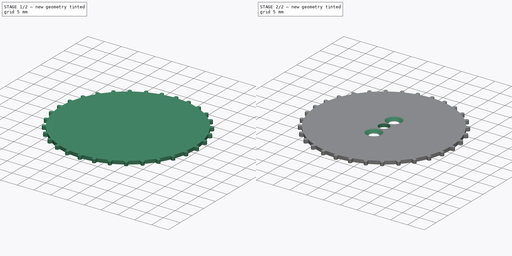
[diagram: build sequence overview — one tinted view per stage of 2, left to right]
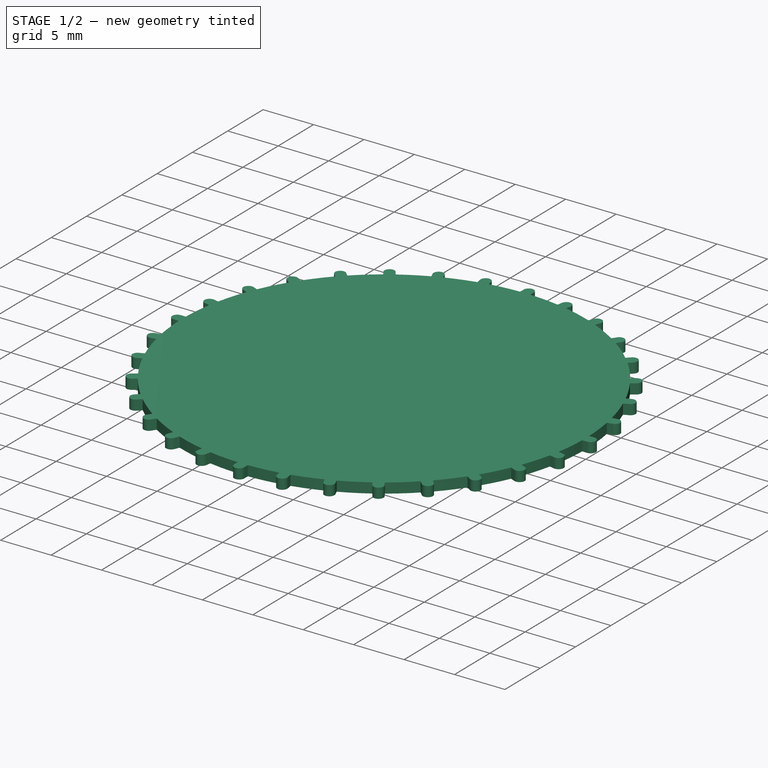
[diagram: stage 1 of 2 — iso view after this stage's code; geometry added in this stage tinted green]
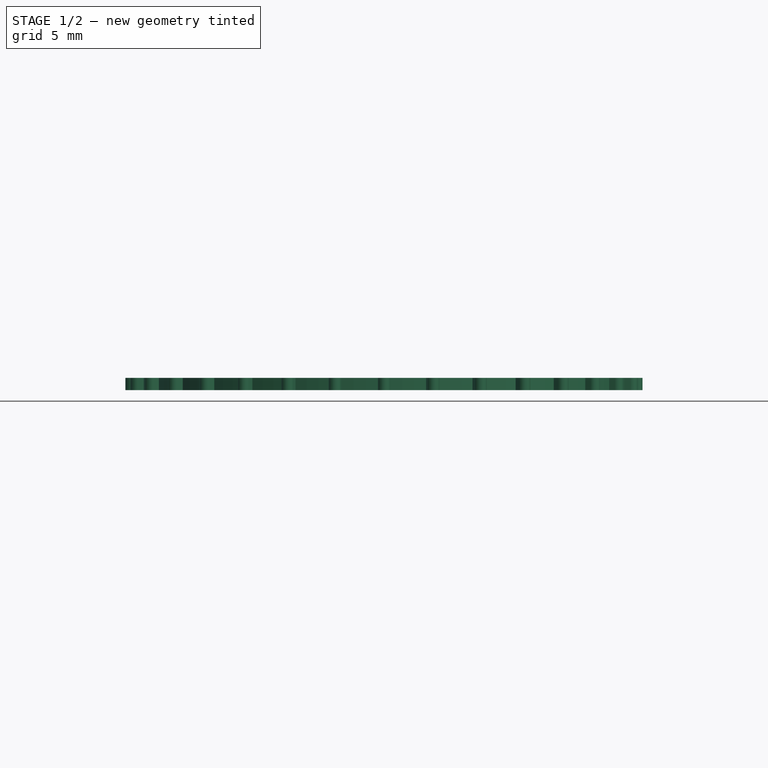
[diagram: stage 1 of 2 — front view after this stage's code; geometry added in this stage tinted green]
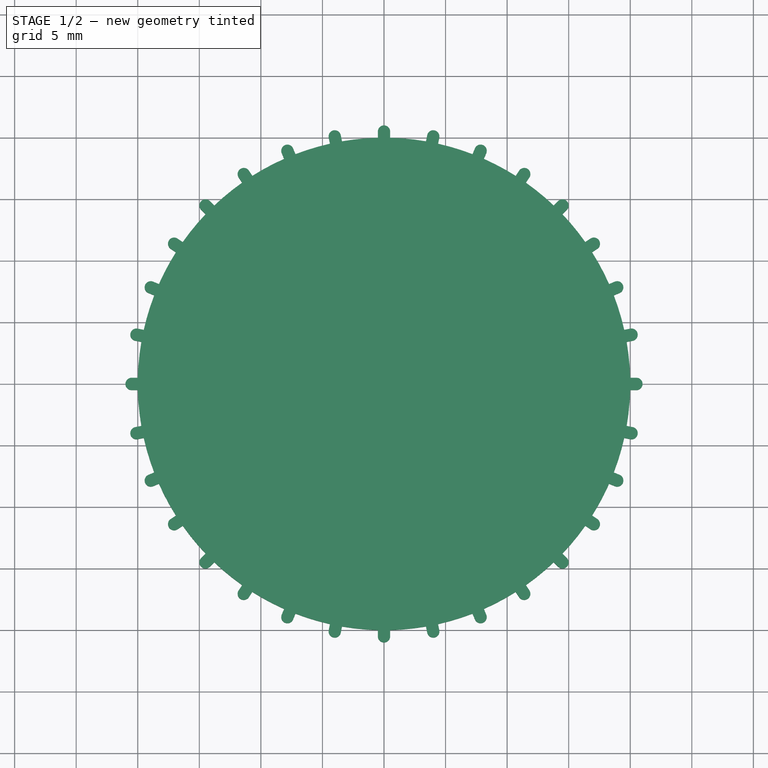
[diagram: stage 1 of 2 — top view after this stage's code; geometry added in this stage tinted green]
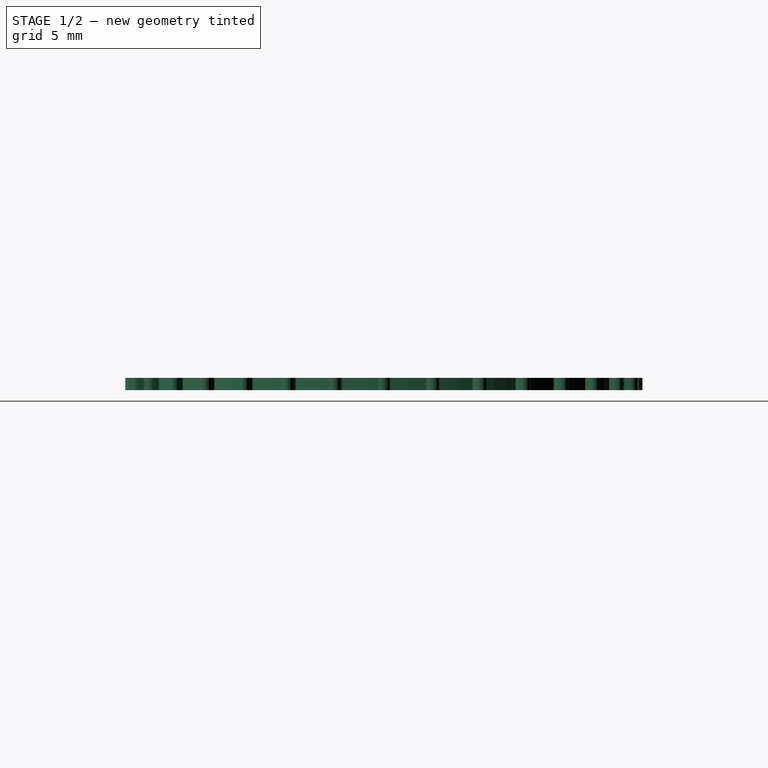
[diagram: stage 1 of 2 — right view after this stage's code; geometry added in this stage tinted green]
FCSTD DOCUMENT  (FreeCAD 0.20R29603 (Git))
Label: indexing-wheel
License: All rights reserved
LicenseURL: http://en.wikipedia.org/wiki/All_rights_reserved
objects: Sketcher::SketchObject×3, Part::Feature×2, PartDesign::Pad×1, PartDesign::PolarPattern×1, PartDesign::Pocket×1, PartDesign::Hole×1, PartDesign::Body×1
note: 13 computed .brp shape members not serialized (recipe doc carries the construction recipe); baked Part::Feature solids carry a one-line shape summary decoded from their .brp

FEATURE [Sketcher::SketchObject] Sketch
  FullyConstrained = true
  MapMode = 5
  Support = -> [XY_Plane]
  sketch-geometry (7):
    g0: LineSegment StartX=-0.5 StartY=19.9937 StartZ=0 EndX=-0.5 EndY=20.5 EndZ=0
    g1: ArcOfCircle CenterX=0 CenterY=20.5 CenterZ=0 NormalX=0 NormalY=0 NormalZ=1 AngleXU=0 Radius=0.5 StartAngle=6.28319 EndAngle=9.42478
    g2: LineSegment StartX=0.5 StartY=20.5 StartZ=0 EndX=0.5 EndY=19.9937 EndZ=0
    g3: ArcOfCircle CenterX=0 CenterY=0 CenterZ=0 NormalX=0 NormalY=0 NormalZ=1 AngleXU=0 Radius=20 StartAngle=1.39945 EndAngle=1.54579
    g4: ArcOfCircle CenterX=0 CenterY=0 CenterZ=0 NormalX=0 NormalY=0 NormalZ=1 AngleXU=0 Radius=20 StartAngle=1.54579 EndAngle=1.5958
    g5: LineSegment StartX=-0.5 StartY=19.9937 StartZ=0 EndX=0 EndY=0 EndZ=0
    g6: LineSegment StartX=3.41019 StartY=19.7071 StartZ=0 EndX=0 EndY=0 EndZ=0
  constraints (20):
    c: Coincident(g2,g1)
    c: Vertical(g2)
    c: Coincident(g3,g2)
    c: Diameter(g3) = 40
    c: DistanceY(g3,g1) = 20.5
    c: Coincident(g4,g3)
    c: Coincident(g4,g0)
    c: Coincident(g4,g2)
    c: Tangent(g2,g1)
    c: Coincident(g6,g3)
    c: Coincident(g6,g3)
    c: Angle(g6,g5) = 0.19635
    c: Coincident(g5,g0)
    c: Coincident(g0,g1)
    c: Tangent(g0,g1)
    c: Vertical(g0)
    c: Coincident(g5,g3)
    c: Coincident(g3,g-1)
    c: PointOnObject(g1,g-2)
    c: Diameter(g1) = 1
FEATURE [PartDesign::Pad] Pad
  Direction = (0,0,1)
  Length = 1
  Length2 = 100
  Profile = -> Sketch
  Type = 0
FEATURE [PartDesign::PolarPattern] PolarPattern
  Angle = 360
  Axis = -> Sketch [N_Axis]
  BaseFeature = -> Pad
  Occurrences = 32
  Originals = -> [Pad]
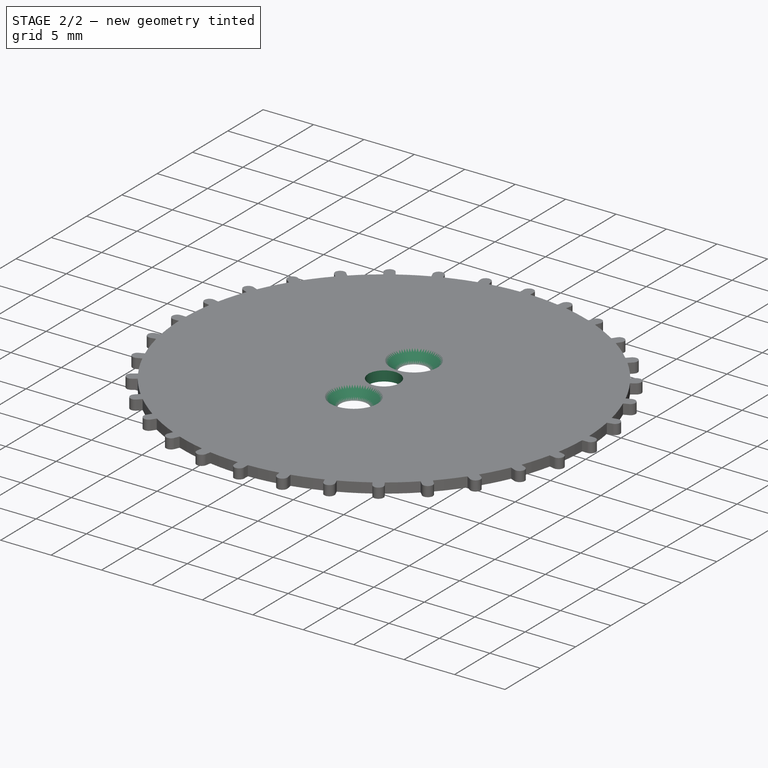
[diagram: stage 2 of 2 — iso view after this stage's code; geometry added in this stage tinted green]
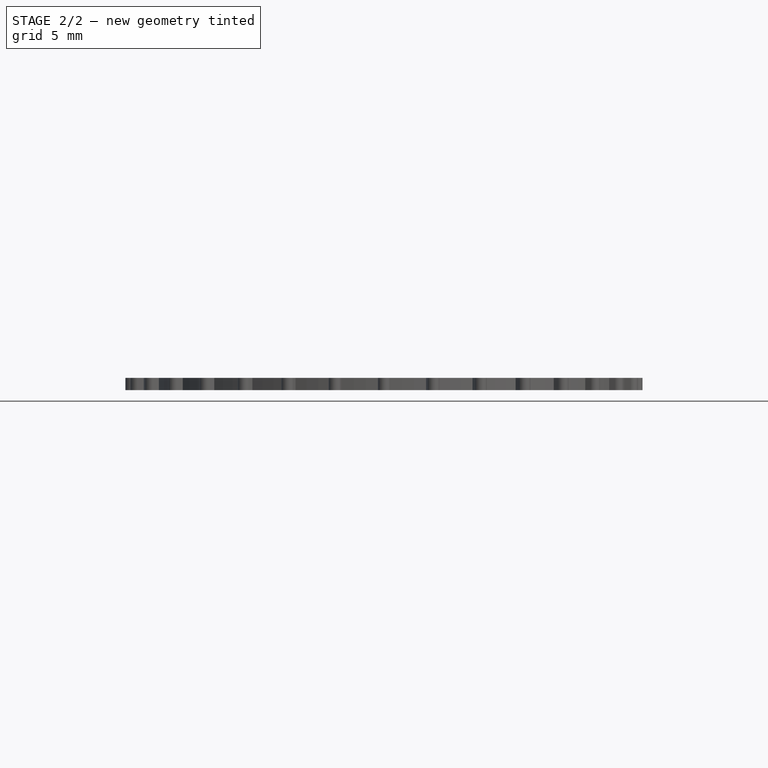
[diagram: stage 2 of 2 — front view after this stage's code; geometry added in this stage tinted green]
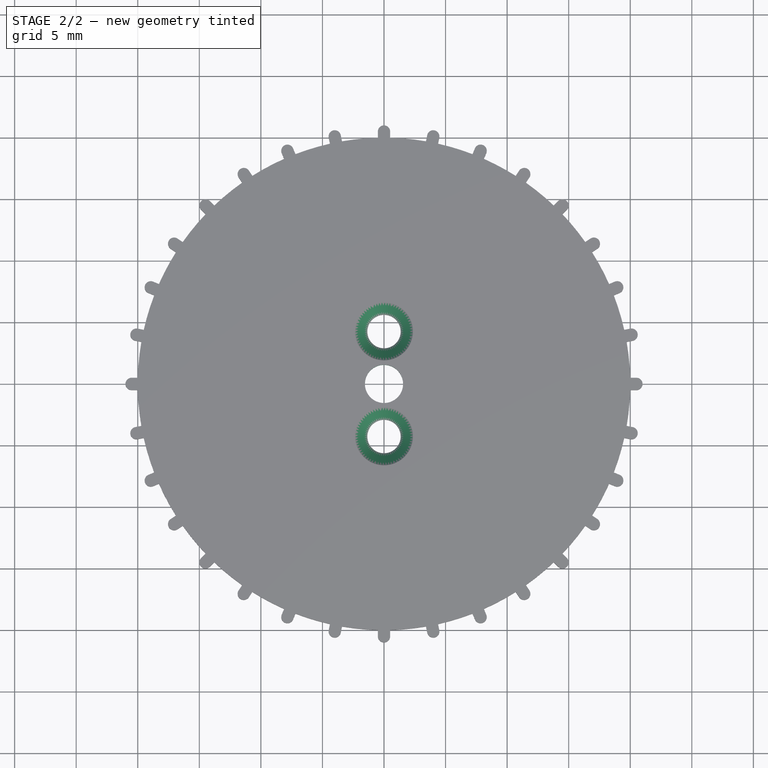
[diagram: stage 2 of 2 — top view after this stage's code; geometry added in this stage tinted green]
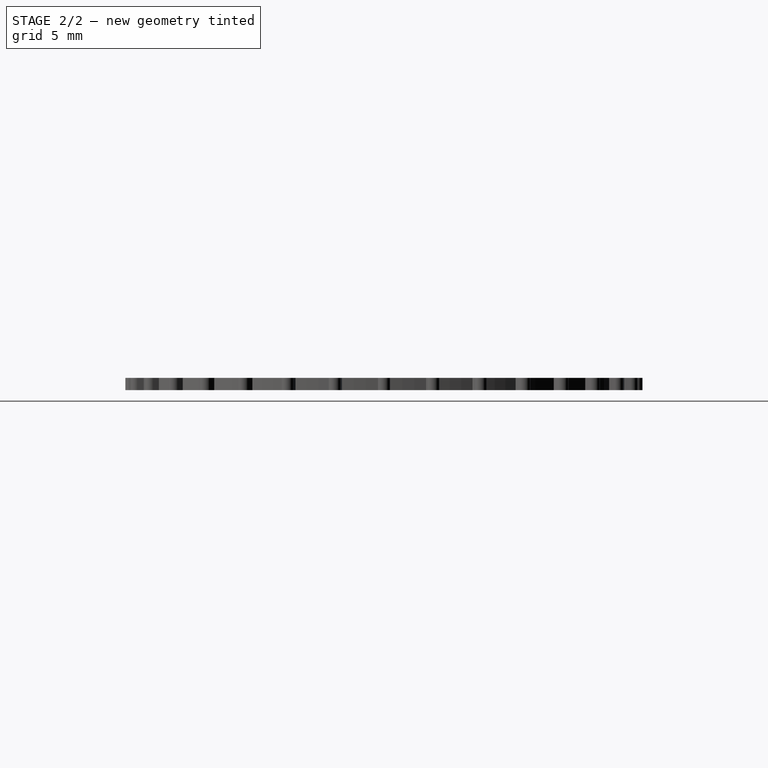
[diagram: stage 2 of 2 — right view after this stage's code; geometry added in this stage tinted green]
FEATURE [Sketcher::SketchObject] Sketch001
  FullyConstrained = true
  MapMode = 5
  Support = -> [XY_Plane]
  sketch-geometry (22):
    g0: Circle CenterX=0 CenterY=-11 CenterZ=0 NormalX=0 NormalY=0 NormalZ=1 AngleXU=0 Radius=1.5
    g1: Circle CenterX=9.52628 CenterY=5.5 CenterZ=0 NormalX=0 NormalY=0 NormalZ=1 AngleXU=0 Radius=1.5
    g2: Circle CenterX=-9.52628 CenterY=5.5 CenterZ=0 NormalX=0 NormalY=0 NormalZ=1 AngleXU=0 Radius=1.5
    g3: ArcOfCircle CenterX=0 CenterY=10 CenterZ=0 NormalX=0 NormalY=0 NormalZ=1 AngleXU=0 Radius=1.5 StartAngle=3.14159 EndAngle=6.28319
    g4: ArcOfCircle CenterX=-1e-16 CenterY=12 CenterZ=0 NormalX=0 NormalY=0 NormalZ=1 AngleXU=0 Radius=1.5 StartAngle=1e-16 EndAngle=3.14159
    g5: LineSegment StartX=1.5 StartY=10 StartZ=0 EndX=1.5 EndY=12 EndZ=0
    g6: LineSegment StartX=-1.5 StartY=10 StartZ=0 EndX=-1.5 EndY=12 EndZ=0
    g7: ArcOfCircle CenterX=8.66025 CenterY=-5 CenterZ=0 NormalX=0 NormalY=0 NormalZ=1 AngleXU=0 Radius=1.5 StartAngle=1.0472 EndAngle=4.18879
    g8: ArcOfCircle CenterX=10.3923 CenterY=-6 CenterZ=0 NormalX=0 NormalY=0 NormalZ=1 AngleXU=0 Radius=1.5 StartAngle=4.18879 EndAngle=7.33038
    g9: LineSegment StartX=7.91025 StartY=-6.29904 StartZ=0 EndX=9.6423 EndY=-7.29904 EndZ=0
    g10: LineSegment StartX=9.41025 StartY=-3.70096 StartZ=0 EndX=11.1423 EndY=-4.70096 EndZ=0
    g11: ArcOfCircle CenterX=-8.66025 CenterY=-5 CenterZ=0 NormalX=0 NormalY=0 NormalZ=1 AngleXU=0 Radius=1.5 StartAngle=5.23599 EndAngle=8.37758
    g12: ArcOfCircle CenterX=-10.3923 CenterY=-6 CenterZ=0 NormalX=0 NormalY=0 NormalZ=1 AngleXU=0 Radius=1.5 StartAngle=2.0944 EndAngle=5.23599
    g13: LineSegment StartX=-9.41025 StartY=-3.70096 StartZ=0 EndX=-11.1423 EndY=-4.70096 EndZ=0
    g14: LineSegment StartX=-7.91025 StartY=-6.29904 StartZ=0 EndX=-9.6423 EndY=-7.29904 EndZ=0
    g15: LineSegment StartX=-10.3923 StartY=-6 StartZ=0 EndX=-8.66025 EndY=-5 EndZ=0
    g16: LineSegment StartX=8.66025 StartY=-5 StartZ=0 EndX=10.3923 EndY=-6 EndZ=0
    g17: LineSegment StartX=-9.52628 StartY=5.5 StartZ=0 EndX=0 EndY=0 EndZ=0
    g18: LineSegment StartX=9.52628 StartY=5.5 StartZ=0 EndX=0 EndY=0 EndZ=0
    g19: Circle CenterX=0 CenterY=0 CenterZ=0 NormalX=0 NormalY=0 NormalZ=1 AngleXU=0 Radius=1.55
    g20: Circle CenterX=0 CenterY=-4.2625 CenterZ=0 NormalX=0 NormalY=0 NormalZ=1 AngleXU=0 Radius=1.3
    g21: Circle CenterX=0 CenterY=4.2625 CenterZ=0 NormalX=0 NormalY=0 NormalZ=1 AngleXU=0 Radius=1.3
  constraints (55):
    c: PointOnObject(g0,g-2)
    c: Tangent(g3,g6) = 1.5708
    c: Tangent(g3,g5) = -1.5708
    c: Tangent(g5,g4) = -1.5708
    c: Tangent(g6,g4) = 1.5708
    c: Vertical(g5)
    c: Equal(g3,g4)
    c: PointOnObject(g3,g-2)
    c: Tangent(g7,g10) = 1.5708
    c: Tangent(g7,g9) = -1.5708
    c: Tangent(g9,g8) = -1.5708
    c: Tangent(g10,g8) = 1.5708
    c: Equal(g7,g8)
    c: Tangent(g11,g14) = 1.5708
    c: Tangent(g11,g13) = -1.5708
    c: Tangent(g13,g12) = -1.5708
    c: Tangent(g14,g12) = 1.5708
    c: Equal(g11,g12)
    c: Coincident(g15,g12)
    c: Coincident(g15,g11)
    c: Coincident(g16,g7)
    c: Coincident(g16,g8)
    c: Angle(g-1,g16) = 2.61799
    c: Angle(g-1,g15) = 0.523599
    c: Diameter(g11) = 3
    c: Diameter(g7) = 3
    c: Diameter(g3) = 3
    c: PointOnObject(g-1,g15)
    c: PointOnObject(g-1,g16)
    c: Coincident(g17,g2)
    c: Coincident(g17,g-1)
    c: Coincident(g18,g1)
    c: Coincident(g18,g-1)
    c: Angle(g18,g-2) = 1.0472
    c: Angle(g-2,g17) = 1.0472
    c: Distance(g11,g-1) = 10
    c: Distance(g-1,g12) = 12
    c: Distance(g18) = 11
    c: Distance(g17) = 11
    c: Distance(g-1,g0) = 11
    c: Distance(g7,g-1) = 10
    c: Distance(g8,g-1) = 12
    c: Distance(g3,g-1) = 10
    c: Distance(g-1,g4) = 12
    c: Diameter(g1) = 3
    c: Diameter(g2) = 3
    c: Diameter(g0) = 3
    c: Coincident(g19,g-1)
    c: Diameter(g19) = 3.1
    c: PointOnObject(g20,g-2)
    c: Equal(g21,g20)
    c: Symmetric(g21,g20,g-1)
    c: DistanceY(g20,g21) = 8.525
    c: Diameter(g20) = 2.6
    c: Diameter(g19) = 3.1
FEATURE [PartDesign::Pocket] Pocket
  BaseFeature = -> PolarPattern
  Direction = (0,0,-1)
  Length = 5
  Length2 = 100
  Profile = -> Sketch001
  Reversed = true
  Type = 0
FEATURE [Part::Feature] Part__Feature  label="92703A448_18-8 Stainless Steel Torx Flat Head Screws"
  Placement = pos=(0,4.2625,1.1025) rot=(0,0,1;0rad)
  shape: bbox 5.088 x 5.088 x 4.109 mm, 66 faces (baked)
FEATURE [Sketcher::SketchObject] Sketch002
  ExternalGeometry = -> [Pocket]
  FullyConstrained = false
  MapMode = 5
  Placement = pos=(0,0,1) rot=(0,0,1;0rad)
  Support = -> [Pocket]
  sketch-geometry (2):
    g0: Circle CenterX=0 CenterY=4.2625 CenterZ=0 NormalX=0 NormalY=0 NormalZ=1 AngleXU=0 Radius=0.894256
    g1: Circle CenterX=0 CenterY=-4.2625 CenterZ=0 NormalX=0 NormalY=0 NormalZ=1 AngleXU=0 Radius=0.882057
  constraints (2):
    c: Coincident(g0,g-4)
    c: Coincident(g1,g-5)
FEATURE [PartDesign::Hole] Hole
  BaseFeature = -> Pocket
  CustomThreadClearance = 0
  Depth = 25
  DepthType = 0
  Diameter = 2.6
  DrillForDepth = false
  DrillPoint = 1
  DrillPointAngle = 118
  HoleCutCountersinkAngle = 90
  HoleCutCustomValues = false
  HoleCutDepth = 0
  HoleCutDiameter = 4.7
  HoleCutType = 2
  ModelThread = false
  Profile = -> Sketch002
  Tapered = false
  TaperedAngle = 90
  ThreadClass = 0
  ThreadDepth = 25
  ThreadDepthType = 0
  ThreadDirection = 0
  ThreadFit = 0
  ThreadSize = 0
  ThreadType = 0
  Threaded = false
  UseCustomThreadClearance = false
FEATURE [PartDesign::Body] Body
  Group = -> [Sketch,Pad,PolarPattern,Sketch001,Pocket,Sketch002,Hole]
  Origin = -> Origin
  Tip = -> Hole
FEATURE [Part::Feature] Part__Feature001  label="92703A448_18-8 Stainless Steel Torx Flat Head Screws001"
  Placement = pos=(0,-4.263,1.1025) rot=(0,0,1;0rad)
  shape: bbox 5.088 x 5.088 x 4.109 mm, 66 faces (baked)
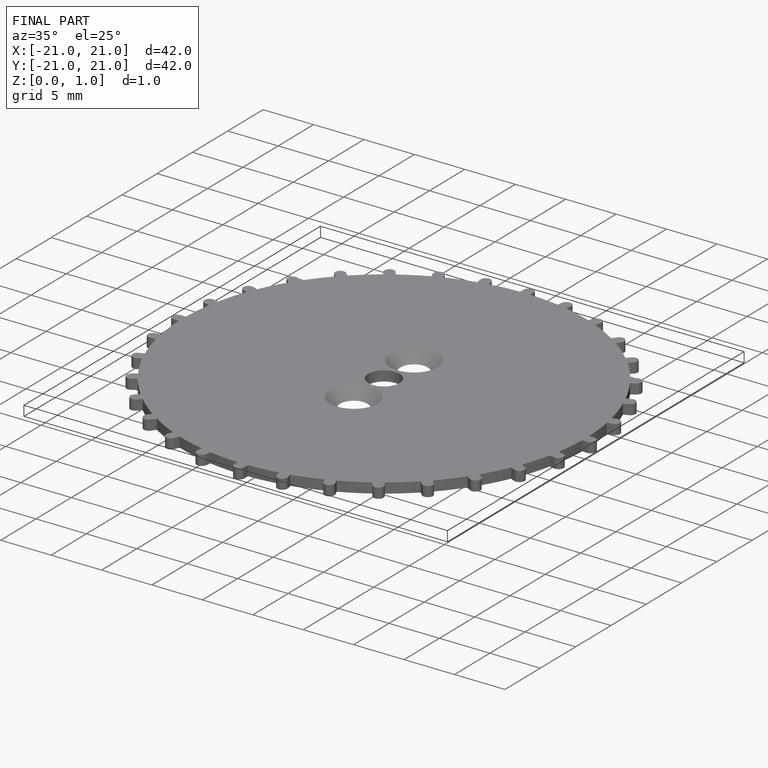
[diagram: finished part — iso view with bounding-box wireframe]
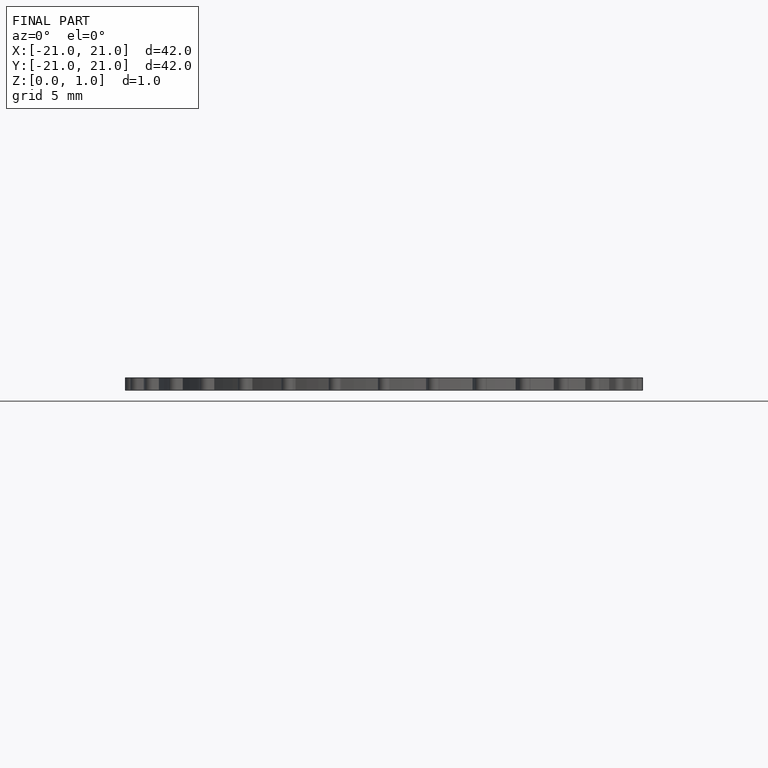
[diagram: finished part — front view with bounding-box wireframe]
